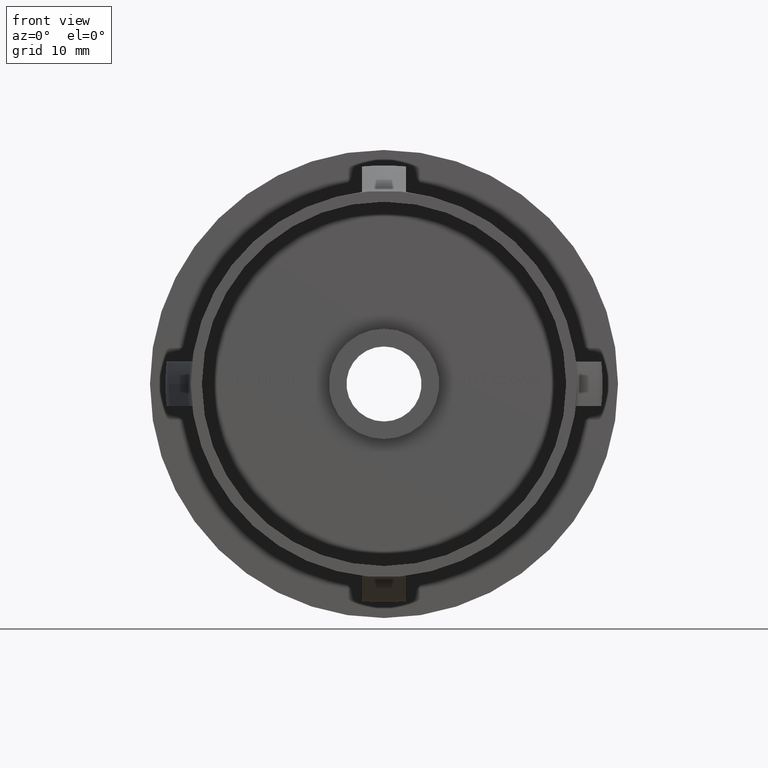
[diagram: clean part render]
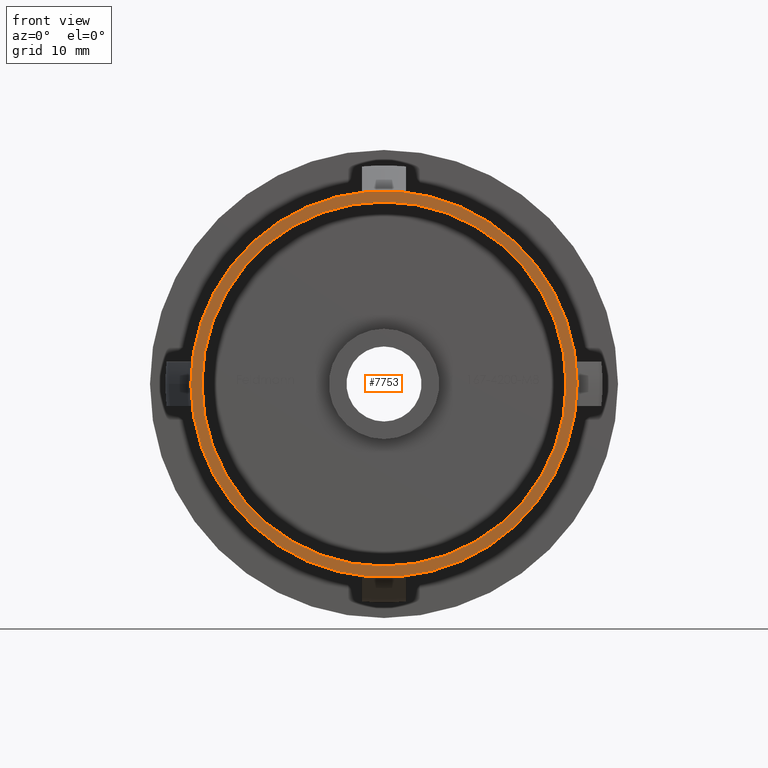
[diagram: same view with one face highlighted and labeled with its STEP entity id]
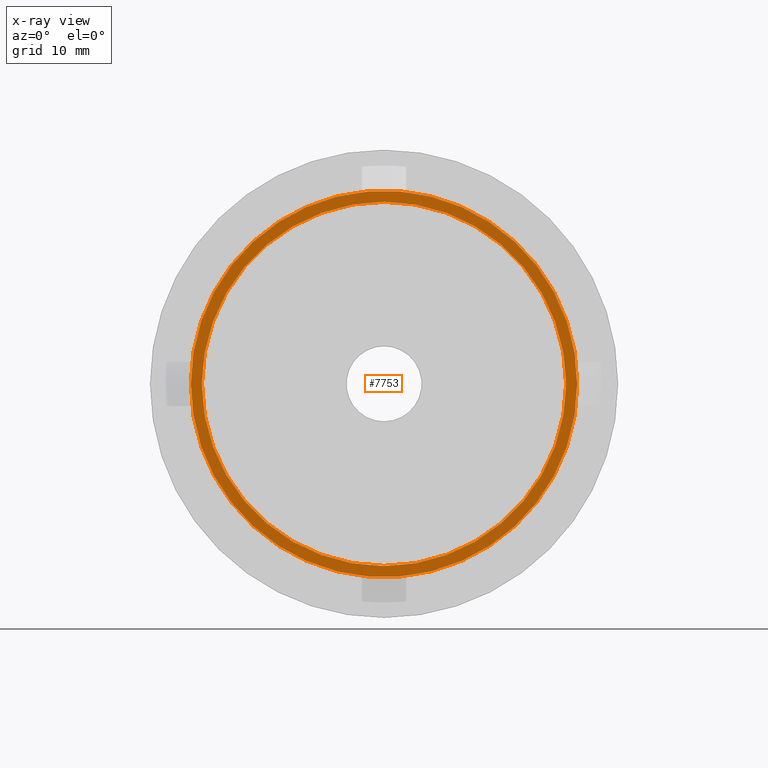
[diagram: x-ray of the same camera — body ghosted, the highlighted face saturated]
A machine part, front view. The second image highlights one B-rep face of the part: STEP entity #7753.
The next image is the same camera in x-ray: the body ghosted, the highlighted face saturated — about 0% of this face is hidden behind the body in this view.
In plain terms, the highlighted planar face has unit normal (-0, 1, 0).
Its self-contained STEP definition (entity closure, byte-faithful):
#324 = FACE_OUTER_BOUND ( 'NONE', #5825, .T. ) ;
#763 = EDGE_CURVE ( 'NONE', #8622, #2507, #14070, .T. ) ;
#1228 = AXIS2_PLACEMENT_3D ( 'NONE', #7947, #13116, #7795 ) ;
#1290 = DIRECTION ( 'NONE',  ( -1.000000000000000000, -1.714505518806297100E-016, 0.0000000000000000000 ) ) ;
#1336 = PLANE ( 'NONE',  #6874 ) ;
#1495 = CARTESIAN_POINT ( 'NONE',  ( 17.50000000000000400, -4.690622940425938900E-016, 2.143131898507868600E-015 ) ) ;
#1916 = EDGE_CURVE ( 'NONE', #9751, #4303, #13840, .T. ) ;
#2507 = VERTEX_POINT ( 'NONE', #7935 ) ;
#2892 = ORIENTED_EDGE ( 'NONE', *, *, #15516, .F. ) ;
#2938 = EDGE_LOOP ( 'NONE', ( #9156, #5557 ) ) ;
#3241 = DIRECTION ( 'NONE',  ( -1.000000000000000000, -1.714505518806297300E-016, 0.0000000000000000000 ) ) ;
#3408 = CARTESIAN_POINT ( 'NONE',  ( -17.49999999999999600, -6.469831609864634800E-015, 0.0000000000000000000 ) ) ;
#4303 = VERTEX_POINT ( 'NONE', #1495 ) ;
#5557 = ORIENTED_EDGE ( 'NONE', *, *, #763, .T. ) ;
#5825 = EDGE_LOOP ( 'NONE', ( #6826, #2892 ) ) ;
#6469 = DIRECTION ( 'NONE',  ( -1.714505518806297100E-016, 1.000000000000000000, 0.0000000000000000000 ) ) ;
#6731 = AXIS2_PLACEMENT_3D ( 'NONE', #8945, #15528, #10237 ) ;
#6826 = ORIENTED_EDGE ( 'NONE', *, *, #1916, .F. ) ;
#6874 = AXIS2_PLACEMENT_3D ( 'NONE', #9145, #6469, #1290 ) ;
#6904 = CIRCLE ( 'NONE', #1228, 16.49999999999999600 ) ;
#6989 = CARTESIAN_POINT ( 'NONE',  ( 4.589976203204287100E-015, -3.469446951953614200E-015, 0.0000000000000000000 ) ) ;
#7753 = ADVANCED_FACE ( 'NONE', ( #9136, #324 ), #1336, .F. ) ;
#7795 = DIRECTION ( 'NONE',  ( -1.000000000000000000, -1.714505518806297100E-016, 0.0000000000000000000 ) ) ;
#7935 = CARTESIAN_POINT ( 'NONE',  ( -16.49999999999999300, -6.298381057984003800E-015, 0.0000000000000000000 ) ) ;
#7947 = CARTESIAN_POINT ( 'NONE',  ( 4.589976203204287100E-015, -3.469446951953614200E-015, 0.0000000000000000000 ) ) ;
#8307 = EDGE_CURVE ( 'NONE', #2507, #8622, #6904, .T. ) ;
#8388 = DIRECTION ( 'NONE',  ( -1.714505518806297100E-016, 1.000000000000000000, -0.0000000000000000000 ) ) ;
#8622 = VERTEX_POINT ( 'NONE', #15218 ) ;
#8703 = CARTESIAN_POINT ( 'NONE',  ( 4.589976203204287100E-015, -3.469446951953614200E-015, 0.0000000000000000000 ) ) ;
#8945 = CARTESIAN_POINT ( 'NONE',  ( 4.589976203204287100E-015, -3.469446951953614200E-015, 0.0000000000000000000 ) ) ;
#9136 = FACE_BOUND ( 'NONE', #2938, .T. ) ;
#9145 = CARTESIAN_POINT ( 'NONE',  ( 16.50000000000000000, -8.572527594031492900E-017, 0.0000000000000000000 ) ) ;
#9156 = ORIENTED_EDGE ( 'NONE', *, *, #8307, .T. ) ;
#9751 = VERTEX_POINT ( 'NONE', #3408 ) ;
#9840 = AXIS2_PLACEMENT_3D ( 'NONE', #6989, #8388, #3241 ) ;
#10237 = DIRECTION ( 'NONE',  ( -1.000000000000000000, -1.714505518806297100E-016, 0.0000000000000000000 ) ) ;
#12028 = CIRCLE ( 'NONE', #9840, 17.50000000000000000 ) ;
#12453 = AXIS2_PLACEMENT_3D ( 'NONE', #8703, #13910, #16344 ) ;
#13116 = DIRECTION ( 'NONE',  ( -1.714505518806297100E-016, 1.000000000000000000, -0.0000000000000000000 ) ) ;
#13840 = CIRCLE ( 'NONE', #12453, 17.50000000000000000 ) ;
#13910 = DIRECTION ( 'NONE',  ( -1.714505518806297100E-016, 1.000000000000000000, -0.0000000000000000000 ) ) ;
#14070 = CIRCLE ( 'NONE', #6731, 16.49999999999999600 ) ;
#15218 = CARTESIAN_POINT ( 'NONE',  ( 16.50000000000000000, -6.405128459232243400E-016, 2.020667218593133100E-015 ) ) ;
#15516 = EDGE_CURVE ( 'NONE', #4303, #9751, #12028, .T. ) ;
#15528 = DIRECTION ( 'NONE',  ( -1.714505518806297100E-016, 1.000000000000000000, -0.0000000000000000000 ) ) ;
#16344 = DIRECTION ( 'NONE',  ( -1.000000000000000000, -1.714505518806297300E-016, 0.0000000000000000000 ) ) ;